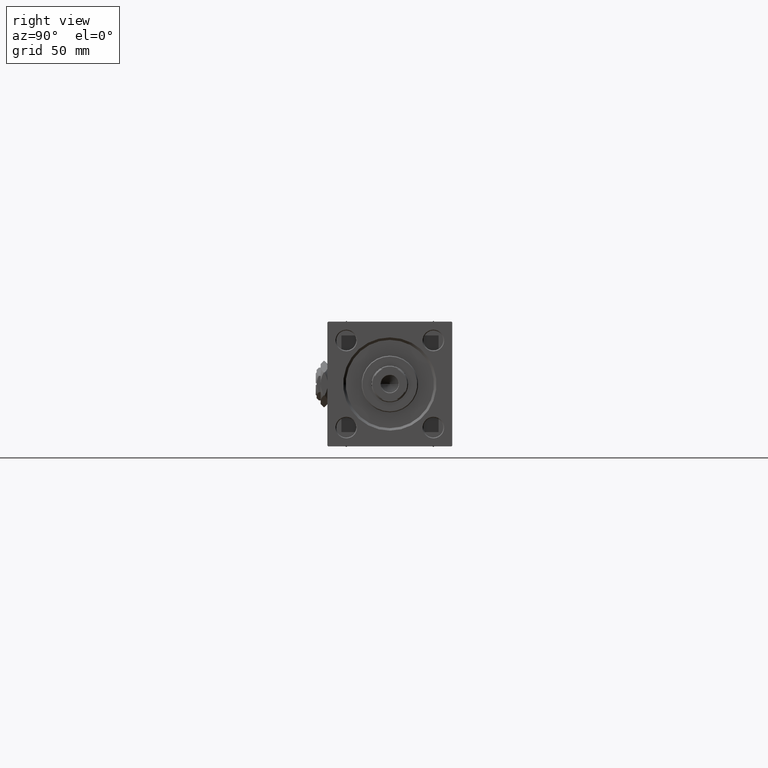
[diagram: clean part render]
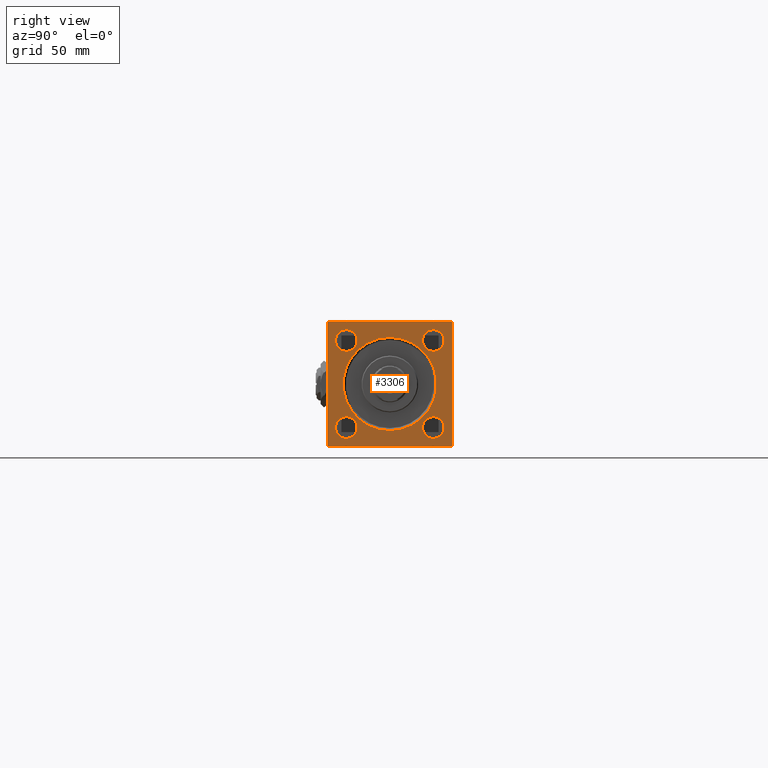
[diagram: same view with one face highlighted and labeled with its STEP entity id]
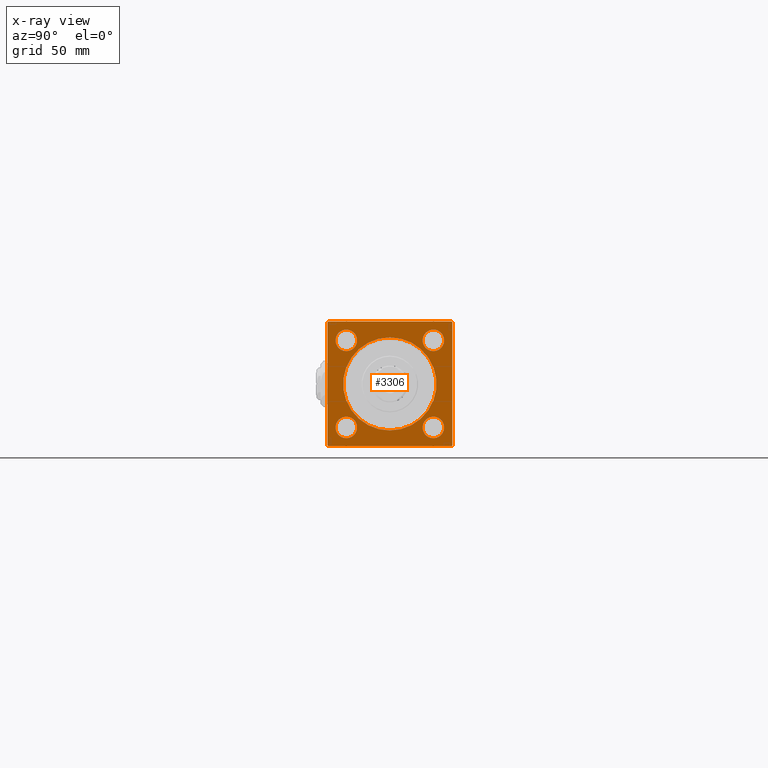
[diagram: x-ray of the same camera — body ghosted, the highlighted face saturated]
A machine part, right view. The second image highlights one B-rep face of the part: STEP entity #3306.
The next image is the same camera in x-ray: the body ghosted, the highlighted face saturated — about 0% of this face is hidden behind the body in this view.
In plain terms, the highlighted planar face has unit normal (-1, 0, 0).
Its self-contained STEP definition (entity closure, byte-faithful):
#368 = LINE ( 'NONE', #19899, #16851 ) ;
#641 = CARTESIAN_POINT ( 'NONE',  ( 383.9999999999999432, 26.14999999999999858, -32.64999999999995595 ) ) ;
#753 = LINE ( 'NONE', #49038, #11310 ) ;
#1210 = CIRCLE ( 'NONE', #3779, 6.499999999999953815 ) ;
#1631 = DIRECTION ( 'NONE',  ( 0.000000000000000000, 0.000000000000000000, 1.000000000000000000 ) ) ;
#1899 = DIRECTION ( 'NONE',  ( 0.000000000000000000, 0.000000000000000000, 1.000000000000000000 ) ) ;
#1917 = VERTEX_POINT ( 'NONE', #7284 ) ;
#1935 = DIRECTION ( 'NONE',  ( 0.000000000000000000, 0.000000000000000000, 1.000000000000000000 ) ) ;
#2247 = EDGE_LOOP ( 'NONE', ( #47242, #43897 ) ) ;
#3259 = EDGE_CURVE ( 'NONE', #18062, #3576, #10109, .T. ) ;
#3306 = ADVANCED_FACE ( 'NONE', ( #9057, #49958, #29106, #46264, #13016, #50211 ), #34109, .F. ) ;
#3576 = VERTEX_POINT ( 'NONE', #51125 ) ;
#3779 = AXIS2_PLACEMENT_3D ( 'NONE', #5835, #14025, #1631 ) ;
#3791 = EDGE_CURVE ( 'NONE', #37340, #44891, #14090, .T. ) ;
#4112 = AXIS2_PLACEMENT_3D ( 'NONE', #22636, #6275, #10763 ) ;
#5099 = DIRECTION ( 'NONE',  ( -1.000000000000000000, -0.000000000000000000, 0.000000000000000000 ) ) ;
#5282 = VERTEX_POINT ( 'NONE', #42563 ) ;
#5835 = CARTESIAN_POINT ( 'NONE',  ( 383.9999999999999432, 26.14999999999999858, -26.15000000000000213 ) ) ;
#5932 = ORIENTED_EDGE ( 'NONE', *, *, #27914, .T. ) ;
#6161 = CARTESIAN_POINT ( 'NONE',  ( 383.9999999999999432, 26.14999999999999858, 26.15000000000000213 ) ) ;
#6232 = CARTESIAN_POINT ( 'NONE',  ( 383.9999999999999432, -26.14999999999999147, 26.14999999999999503 ) ) ;
#6270 = EDGE_CURVE ( 'NONE', #19956, #1917, #46995, .T. ) ;
#6275 = DIRECTION ( 'NONE',  ( -1.000000000000000000, -0.000000000000000000, 0.000000000000000000 ) ) ;
#6373 = EDGE_LOOP ( 'NONE', ( #39573, #5932 ) ) ;
#6509 = CARTESIAN_POINT ( 'NONE',  ( 383.9999999999999432, -37.50000000000000000, 37.49999999999997868 ) ) ;
#6755 = AXIS2_PLACEMENT_3D ( 'NONE', #45961, #38030, #1899 ) ;
#7197 = EDGE_CURVE ( 'NONE', #31241, #10021, #38665, .T. ) ;
#7284 = CARTESIAN_POINT ( 'NONE',  ( 383.9999999999999432, -26.14999999999999147, 32.64999999999994174 ) ) ;
#7340 = DIRECTION ( 'NONE',  ( 0.000000000000000000, 0.000000000000000000, 1.000000000000000000 ) ) ;
#7705 = LINE ( 'NONE', #14844, #19007 ) ;
#8625 = DIRECTION ( 'NONE',  ( 0.000000000000000000, 0.000000000000000000, 1.000000000000000000 ) ) ;
#8722 = EDGE_LOOP ( 'NONE', ( #11253, #13989, #14558, #39867, #31964, #38279, #9236, #17724 ) ) ;
#9057 = FACE_BOUND ( 'NONE', #19933, .T. ) ;
#9236 = ORIENTED_EDGE ( 'NONE', *, *, #31431, .T. ) ;
#9731 = LINE ( 'NONE', #22135, #45638 ) ;
#10021 = VERTEX_POINT ( 'NONE', #41397 ) ;
#10100 = DIRECTION ( 'NONE',  ( 0.000000000000000000, 0.000000000000000000, 1.000000000000000000 ) ) ;
#10109 = LINE ( 'NONE', #21458, #13244 ) ;
#10389 = VERTEX_POINT ( 'NONE', #46097 ) ;
#10608 = CARTESIAN_POINT ( 'NONE',  ( 383.9999999999999432, 26.14999999999999858, 26.15000000000000213 ) ) ;
#10653 = EDGE_CURVE ( 'NONE', #10021, #31241, #14380, .T. ) ;
#10763 = DIRECTION ( 'NONE',  ( 0.000000000000000000, 0.000000000000000000, 1.000000000000000000 ) ) ;
#11109 = CARTESIAN_POINT ( 'NONE',  ( 383.9999999999999432, 26.14999999999999858, 32.64999999999995595 ) ) ;
#11253 = ORIENTED_EDGE ( 'NONE', *, *, #38747, .T. ) ;
#11310 = VECTOR ( 'NONE', #52228, 1000.000000000000114 ) ;
#12050 = VERTEX_POINT ( 'NONE', #41677 ) ;
#12924 = CARTESIAN_POINT ( 'NONE',  ( 383.9999999999999432, 26.14999999999999858, 19.65000000000004832 ) ) ;
#13016 = FACE_BOUND ( 'NONE', #37454, .T. ) ;
#13148 = VECTOR ( 'NONE', #34116, 1000.000000000000000 ) ;
#13244 = VECTOR ( 'NONE', #45476, 1000.000000000000000 ) ;
#13725 = EDGE_CURVE ( 'NONE', #5282, #40081, #368, .T. ) ;
#13989 = ORIENTED_EDGE ( 'NONE', *, *, #24314, .T. ) ;
#14025 = DIRECTION ( 'NONE',  ( -1.000000000000000000, -0.000000000000000000, 0.000000000000000000 ) ) ;
#14090 = CIRCLE ( 'NONE', #43570, 6.499999999999953815 ) ;
#14165 = DIRECTION ( 'NONE',  ( -1.000000000000000000, -0.000000000000000000, 0.000000000000000000 ) ) ;
#14380 = CIRCLE ( 'NONE', #6755, 6.499999999999953815 ) ;
#14558 = ORIENTED_EDGE ( 'NONE', *, *, #17006, .F. ) ;
#14559 = VERTEX_POINT ( 'NONE', #641 ) ;
#14607 = DIRECTION ( 'NONE',  ( -1.000000000000000000, -0.000000000000000000, 0.000000000000000000 ) ) ;
#14844 = CARTESIAN_POINT ( 'NONE',  ( 383.9999999999999432, 37.50000000000000000, 37.49999999999999289 ) ) ;
#15081 = ORIENTED_EDGE ( 'NONE', *, *, #27528, .T. ) ;
#15108 = CARTESIAN_POINT ( 'NONE',  ( 383.9999999999999432, -36.99999999999990052, -37.50000000000000000 ) ) ;
#15158 = ORIENTED_EDGE ( 'NONE', *, *, #6270, .T. ) ;
#16253 = CARTESIAN_POINT ( 'NONE',  ( 383.9999999999999432, -26.14999999999999147, 19.65000000000004832 ) ) ;
#16851 = VECTOR ( 'NONE', #48658, 1000.000000000000000 ) ;
#17006 = EDGE_CURVE ( 'NONE', #5282, #20011, #9731, .T. ) ;
#17302 = CARTESIAN_POINT ( 'NONE',  ( 383.9999999999999432, -36.99999999999988631, 37.49999999999997868 ) ) ;
#17724 = ORIENTED_EDGE ( 'NONE', *, *, #3259, .T. ) ;
#18062 = VERTEX_POINT ( 'NONE', #17302 ) ;
#19007 = VECTOR ( 'NONE', #39106, 1000.000000000000000 ) ;
#19480 = CARTESIAN_POINT ( 'NONE',  ( 383.9999999999999432, -26.15000000000000213, -26.15000000000000213 ) ) ;
#19899 = CARTESIAN_POINT ( 'NONE',  ( 383.9999999999999432, 37.50000000000000000, -36.99999999999993605 ) ) ;
#19933 = EDGE_LOOP ( 'NONE', ( #46975, #15081 ) ) ;
#19956 = VERTEX_POINT ( 'NONE', #16253 ) ;
#20011 = VERTEX_POINT ( 'NONE', #48445 ) ;
#20091 = VERTEX_POINT ( 'NONE', #46570 ) ;
#20648 = AXIS2_PLACEMENT_3D ( 'NONE', #24198, #49245, #8625 ) ;
#20760 = CIRCLE ( 'NONE', #50249, 27.99999999999996803 ) ;
#21458 = CARTESIAN_POINT ( 'NONE',  ( 383.9999999999999432, -37.50000000000000000, 36.99999999999992184 ) ) ;
#22135 = CARTESIAN_POINT ( 'NONE',  ( 383.9999999999999432, 37.50000000000000000, -37.50000000000000000 ) ) ;
#22264 = DIRECTION ( 'NONE',  ( 0.000000000000000000, 0.000000000000000000, 1.000000000000000000 ) ) ;
#22464 = DIRECTION ( 'NONE',  ( 0.000000000000000000, 0.000000000000000000, 1.000000000000000000 ) ) ;
#22614 = DIRECTION ( 'NONE',  ( 0.000000000000000000, -9.251858538542972814E-17, -1.000000000000000000 ) ) ;
#22636 = CARTESIAN_POINT ( 'NONE',  ( 383.9999999999999432, 26.14999999999999858, -26.15000000000000213 ) ) ;
#23541 = EDGE_CURVE ( 'NONE', #12050, #20091, #753, .T. ) ;
#24150 = VECTOR ( 'NONE', #22614, 1000.000000000000000 ) ;
#24198 = CARTESIAN_POINT ( 'NONE',  ( 383.9999999999999432, 0.000000000000000000, 0.000000000000000000 ) ) ;
#24314 = EDGE_CURVE ( 'NONE', #10389, #20011, #51249, .T. ) ;
#24468 = VERTEX_POINT ( 'NONE', #32489 ) ;
#24780 = ORIENTED_EDGE ( 'NONE', *, *, #26155, .T. ) ;
#25137 = ORIENTED_EDGE ( 'NONE', *, *, #36429, .T. ) ;
#25390 = CARTESIAN_POINT ( 'NONE',  ( 383.9999999999999432, 3.429011037612585332E-15, 27.99999999999996803 ) ) ;
#25492 = CARTESIAN_POINT ( 'NONE',  ( 383.9999999999999432, 0.000000000000000000, -27.99999999999996803 ) ) ;
#26155 = EDGE_CURVE ( 'NONE', #47106, #44581, #34136, .T. ) ;
#26202 = CARTESIAN_POINT ( 'NONE',  ( 383.9999999999999432, 0.000000000000000000, 0.000000000000000000 ) ) ;
#27528 = EDGE_CURVE ( 'NONE', #44891, #37340, #48378, .T. ) ;
#27914 = EDGE_CURVE ( 'NONE', #24468, #14559, #1210, .T. ) ;
#28682 = CARTESIAN_POINT ( 'NONE',  ( 383.9999999999999432, -26.14999999999999147, 26.14999999999999503 ) ) ;
#29106 = FACE_BOUND ( 'NONE', #2247, .T. ) ;
#29377 = CARTESIAN_POINT ( 'NONE',  ( 383.9999999999999432, -26.15000000000000213, -19.65000000000005187 ) ) ;
#31241 = VERTEX_POINT ( 'NONE', #29377 ) ;
#31300 = EDGE_CURVE ( 'NONE', #12050, #40081, #38076, .T. ) ;
#31431 = EDGE_CURVE ( 'NONE', #20091, #18062, #7705, .T. ) ;
#31772 = AXIS2_PLACEMENT_3D ( 'NONE', #26202, #5099, #1935 ) ;
#31964 = ORIENTED_EDGE ( 'NONE', *, *, #31300, .F. ) ;
#32489 = CARTESIAN_POINT ( 'NONE',  ( 383.9999999999999432, 26.14999999999999858, -19.65000000000005187 ) ) ;
#32656 = EDGE_CURVE ( 'NONE', #44581, #47106, #20760, .T. ) ;
#34109 = PLANE ( 'NONE',  #31772 ) ;
#34116 = DIRECTION ( 'NONE',  ( 0.000000000000000000, 0.000000000000000000, -1.000000000000000000 ) ) ;
#34136 = CIRCLE ( 'NONE', #20648, 27.99999999999996803 ) ;
#34954 = VECTOR ( 'NONE', #50216, 1000.000000000000114 ) ;
#35309 = AXIS2_PLACEMENT_3D ( 'NONE', #19480, #50377, #7340 ) ;
#36429 = EDGE_CURVE ( 'NONE', #1917, #19956, #39249, .T. ) ;
#36615 = AXIS2_PLACEMENT_3D ( 'NONE', #6161, #14607, #22264 ) ;
#37340 = VERTEX_POINT ( 'NONE', #12924 ) ;
#37454 = EDGE_LOOP ( 'NONE', ( #24780, #47662 ) ) ;
#38030 = DIRECTION ( 'NONE',  ( -1.000000000000000000, -0.000000000000000000, 0.000000000000000000 ) ) ;
#38076 = LINE ( 'NONE', #46776, #13148 ) ;
#38279 = ORIENTED_EDGE ( 'NONE', *, *, #23541, .T. ) ;
#38665 = CIRCLE ( 'NONE', #35309, 6.499999999999953815 ) ;
#38747 = EDGE_CURVE ( 'NONE', #3576, #10389, #39477, .T. ) ;
#39106 = DIRECTION ( 'NONE',  ( 0.000000000000000000, -1.000000000000000000, -1.850371707708594316E-16 ) ) ;
#39249 = CIRCLE ( 'NONE', #51035, 6.499999999999946709 ) ;
#39477 = LINE ( 'NONE', #6509, #24150 ) ;
#39573 = ORIENTED_EDGE ( 'NONE', *, *, #46956, .T. ) ;
#39867 = ORIENTED_EDGE ( 'NONE', *, *, #13725, .T. ) ;
#39945 = CARTESIAN_POINT ( 'NONE',  ( 383.9999999999999432, 37.50000000000000000, -36.99999999999993605 ) ) ;
#40081 = VERTEX_POINT ( 'NONE', #39945 ) ;
#41057 = AXIS2_PLACEMENT_3D ( 'NONE', #28682, #44788, #49516 ) ;
#41397 = CARTESIAN_POINT ( 'NONE',  ( 383.9999999999999432, -26.15000000000000213, -32.64999999999995595 ) ) ;
#41677 = CARTESIAN_POINT ( 'NONE',  ( 383.9999999999999432, 37.50000000000000000, 36.99999999999993605 ) ) ;
#42563 = CARTESIAN_POINT ( 'NONE',  ( 383.9999999999999432, 36.99999999999994316, -37.50000000000000000 ) ) ;
#43168 = DIRECTION ( 'NONE',  ( 0.000000000000000000, 0.000000000000000000, 1.000000000000000000 ) ) ;
#43297 = CARTESIAN_POINT ( 'NONE',  ( 383.9999999999999432, 0.000000000000000000, 0.000000000000000000 ) ) ;
#43570 = AXIS2_PLACEMENT_3D ( 'NONE', #10608, #50466, #10100 ) ;
#43897 = ORIENTED_EDGE ( 'NONE', *, *, #7197, .T. ) ;
#44581 = VERTEX_POINT ( 'NONE', #25390 ) ;
#44788 = DIRECTION ( 'NONE',  ( -1.000000000000000000, -0.000000000000000000, 0.000000000000000000 ) ) ;
#44891 = VERTEX_POINT ( 'NONE', #11109 ) ;
#45476 = DIRECTION ( 'NONE',  ( -0.000000000000000000, -0.7071067811865867636, -0.7071067811865081598 ) ) ;
#45638 = VECTOR ( 'NONE', #46667, 1000.000000000000000 ) ;
#45961 = CARTESIAN_POINT ( 'NONE',  ( 383.9999999999999432, -26.15000000000000213, -26.15000000000000213 ) ) ;
#46097 = CARTESIAN_POINT ( 'NONE',  ( 383.9999999999999432, -37.50000000000000711, -36.99999999999989342 ) ) ;
#46264 = FACE_BOUND ( 'NONE', #6373, .T. ) ;
#46570 = CARTESIAN_POINT ( 'NONE',  ( 383.9999999999999432, 36.99999999999994316, 37.49999999999999289 ) ) ;
#46667 = DIRECTION ( 'NONE',  ( 0.000000000000000000, -1.000000000000000000, 0.000000000000000000 ) ) ;
#46776 = CARTESIAN_POINT ( 'NONE',  ( 383.9999999999999432, 37.50000000000000000, 37.49999999999999289 ) ) ;
#46956 = EDGE_CURVE ( 'NONE', #14559, #24468, #49605, .T. ) ;
#46975 = ORIENTED_EDGE ( 'NONE', *, *, #3791, .T. ) ;
#46995 = CIRCLE ( 'NONE', #41057, 6.499999999999946709 ) ;
#47094 = EDGE_LOOP ( 'NONE', ( #15158, #25137 ) ) ;
#47106 = VERTEX_POINT ( 'NONE', #25492 ) ;
#47242 = ORIENTED_EDGE ( 'NONE', *, *, #10653, .T. ) ;
#47662 = ORIENTED_EDGE ( 'NONE', *, *, #32656, .T. ) ;
#48378 = CIRCLE ( 'NONE', #36615, 6.499999999999953815 ) ;
#48445 = CARTESIAN_POINT ( 'NONE',  ( 383.9999999999999432, -36.99999999999990052, -37.50000000000000000 ) ) ;
#48658 = DIRECTION ( 'NONE',  ( -0.000000000000000000, 0.7071067811865426878, 0.7071067811865524577 ) ) ;
#49038 = CARTESIAN_POINT ( 'NONE',  ( 383.9999999999999432, 36.99999999999994316, 37.49999999999999289 ) ) ;
#49245 = DIRECTION ( 'NONE',  ( -1.000000000000000000, -0.000000000000000000, 0.000000000000000000 ) ) ;
#49516 = DIRECTION ( 'NONE',  ( 0.000000000000000000, 0.000000000000000000, 1.000000000000000000 ) ) ;
#49605 = CIRCLE ( 'NONE', #4112, 6.499999999999953815 ) ;
#49958 = FACE_BOUND ( 'NONE', #47094, .T. ) ;
#50211 = FACE_OUTER_BOUND ( 'NONE', #8722, .T. ) ;
#50216 = DIRECTION ( 'NONE',  ( 0.000000000000000000, 0.7071067811865474617, -0.7071067811865474617 ) ) ;
#50249 = AXIS2_PLACEMENT_3D ( 'NONE', #43297, #51484, #22464 ) ;
#50377 = DIRECTION ( 'NONE',  ( -1.000000000000000000, -0.000000000000000000, 0.000000000000000000 ) ) ;
#50466 = DIRECTION ( 'NONE',  ( -1.000000000000000000, -0.000000000000000000, 0.000000000000000000 ) ) ;
#51035 = AXIS2_PLACEMENT_3D ( 'NONE', #6232, #14165, #43168 ) ;
#51125 = CARTESIAN_POINT ( 'NONE',  ( 383.9999999999999432, -37.50000000000000000, 36.99999999999992184 ) ) ;
#51249 = LINE ( 'NONE', #15108, #34954 ) ;
#51484 = DIRECTION ( 'NONE',  ( -1.000000000000000000, -0.000000000000000000, 0.000000000000000000 ) ) ;
#52228 = DIRECTION ( 'NONE',  ( 0.000000000000000000, -0.7071067811865474617, 0.7071067811865474617 ) ) ;